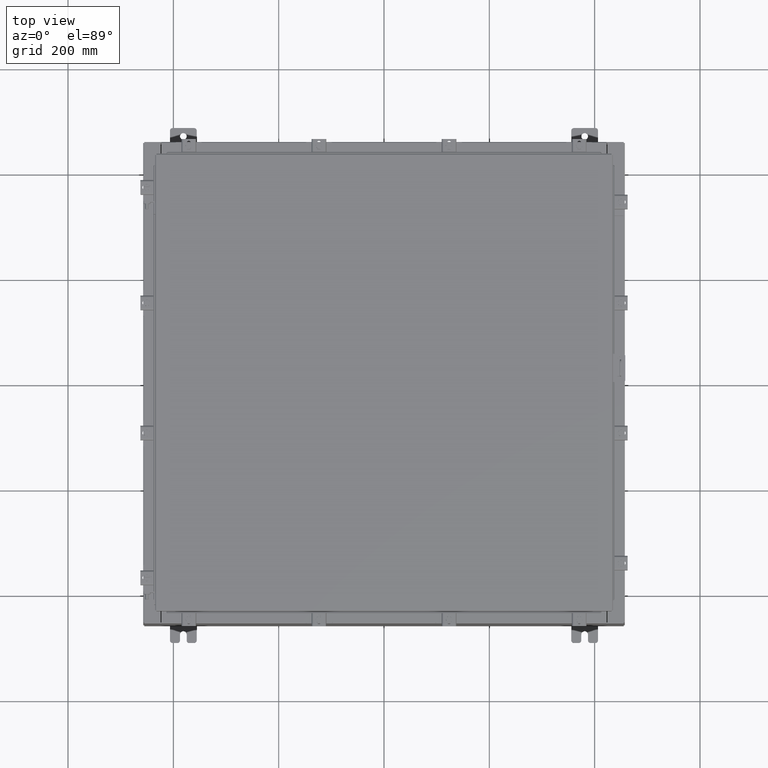
[diagram: clean part render]
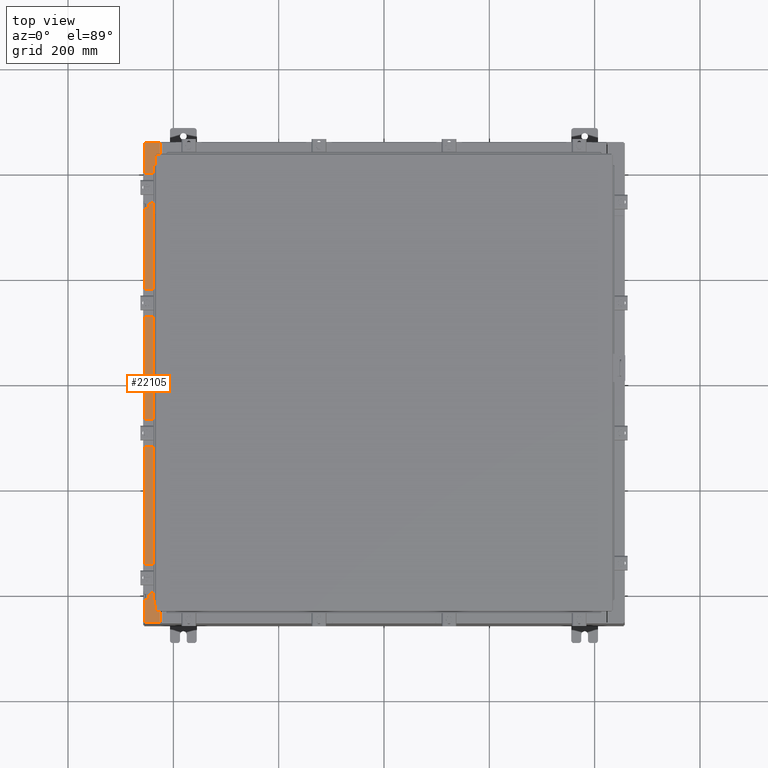
[diagram: same view with one face highlighted and labeled with its STEP entity id]
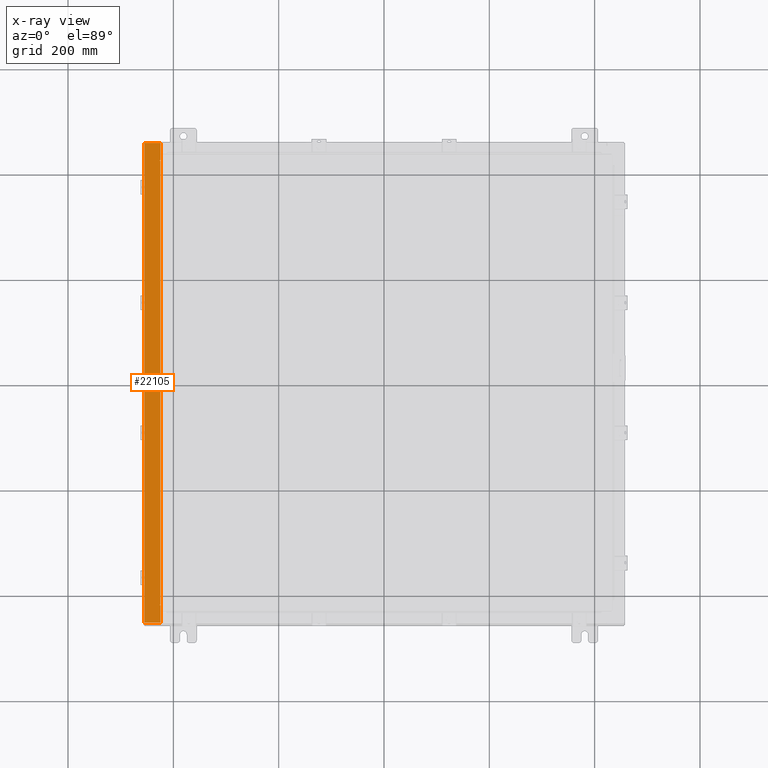
[diagram: x-ray of the same camera — body ghosted, the highlighted face saturated]
A machine part, top view. The second image highlights one B-rep face of the part: STEP entity #22105.
The next image is the same camera in x-ray: the body ghosted, the highlighted face saturated — about 0% of this face is hidden behind the body in this view.
In plain terms, the highlighted planar face has unit normal (0, 0, -1).
Its self-contained STEP definition (entity closure, byte-faithful):
#81 = CARTESIAN_POINT ( 'NONE',  ( -16.69970000000004300, 0.0000000000000000000, 11.92530000000000900 ) ) ;
#299 = VECTOR ( 'NONE', #3041, 39.37007874015748100 ) ;
#419 = ORIENTED_EDGE ( 'NONE', *, *, #2766, .F. ) ;
#669 = CARTESIAN_POINT ( 'NONE',  ( -16.75005000000004100, 16.59375000000000000, 11.92530000000000900 ) ) ;
#821 = CARTESIAN_POINT ( 'NONE',  ( -8.532114493236880700E-014, 0.0000000000000000000, 11.92530000000013000 ) ) ;
#1133 = CARTESIAN_POINT ( 'NONE',  ( -16.69970000000004300, 17.92530000000000000, 11.92530000000000900 ) ) ;
#1616 = DIRECTION ( 'NONE',  ( 0.0000000000000000000, 1.000000000000000000, 0.0000000000000000000 ) ) ;
#1712 = CARTESIAN_POINT ( 'NONE',  ( -16.75005000000004100, -16.63110000000000000, 11.92530000000000900 ) ) ;
#2168 = VECTOR ( 'NONE', #23709, 39.37007874015748100 ) ;
#2356 = EDGE_CURVE ( 'NONE', #16671, #18657, #14402, .T. ) ;
#2521 = CIRCLE ( 'NONE', #21454, 0.01867499999999949400 ) ;
#2683 = VERTEX_POINT ( 'NONE', #669 ) ;
#2707 = ORIENTED_EDGE ( 'NONE', *, *, #5775, .T. ) ;
#2766 = EDGE_CURVE ( 'NONE', #6920, #5363, #5882, .T. ) ;
#2942 = DIRECTION ( 'NONE',  ( 7.132762385546384700E-015, 0.0000000000000000000, -1.000000000000000000 ) ) ;
#3041 = DIRECTION ( 'NONE',  ( -0.0000000000000000000, 1.000000000000000000, -0.0000000000000000000 ) ) ;
#3084 = ORIENTED_EDGE ( 'NONE', *, *, #21712, .F. ) ;
#3278 = VECTOR ( 'NONE', #1616, 39.37007874015748100 ) ;
#3533 = EDGE_CURVE ( 'NONE', #17413, #14650, #21243, .T. ) ;
#3877 = VERTEX_POINT ( 'NONE', #7406 ) ;
#3948 = ORIENTED_EDGE ( 'NONE', *, *, #5366, .T. ) ;
#4086 = LINE ( 'NONE', #22538, #9010 ) ;
#4978 = EDGE_CURVE ( 'NONE', #13679, #2683, #12632, .T. ) ;
#5363 = VERTEX_POINT ( 'NONE', #16224 ) ;
#5366 = EDGE_CURVE ( 'NONE', #18657, #5363, #4086, .T. ) ;
#5432 = CARTESIAN_POINT ( 'NONE',  ( -16.71270000000004400, -16.59375000000000000, 11.92530000000001200 ) ) ;
#5775 = EDGE_CURVE ( 'NONE', #6920, #17413, #17572, .T. ) ;
#5809 = VECTOR ( 'NONE', #21328, 39.37007874015748100 ) ;
#5882 = LINE ( 'NONE', #13477, #299 ) ;
#5966 = VECTOR ( 'NONE', #16456, 39.37007874015748100 ) ;
#6533 = DIRECTION ( 'NONE',  ( -7.132762385546384700E-015, -0.0000000000000000000, 1.000000000000000000 ) ) ;
#6826 = ORIENTED_EDGE ( 'NONE', *, *, #18693, .F. ) ;
#6920 = VERTEX_POINT ( 'NONE', #18644 ) ;
#7133 = LINE ( 'NONE', #17217, #5809 ) ;
#7406 = CARTESIAN_POINT ( 'NONE',  ( -16.71270000000004400, 16.59375000000000000, 11.92530000000001200 ) ) ;
#7945 = EDGE_CURVE ( 'NONE', #18167, #14650, #13845, .T. ) ;
#8860 = EDGE_CURVE ( 'NONE', #16671, #13679, #26963, .T. ) ;
#9010 = VECTOR ( 'NONE', #12089, 39.37007874015748100 ) ;
#9275 = EDGE_LOOP ( 'NONE', ( #14379, #13049, #3948, #419, #2707, #13629, #27130, #19870, #6826, #3084, #20287, #17878 ) ) ;
#9323 = CARTESIAN_POINT ( 'NONE',  ( -16.75005000000004100, -16.63110000000000000, 11.92530000000001200 ) ) ;
#9411 = DIRECTION ( 'NONE',  ( 1.000000000000000000, -4.340572780400098900E-014, -4.340572780400098900E-014 ) ) ;
#11161 = CARTESIAN_POINT ( 'NONE',  ( -8.532114493236880700E-014, -17.92530000000000000, 11.92530000000013000 ) ) ;
#11217 = CARTESIAN_POINT ( 'NONE',  ( -16.75005000000004100, -16.61242500000000200, 11.92530000000001200 ) ) ;
#11473 = VERTEX_POINT ( 'NONE', #23925 ) ;
#11790 = EDGE_CURVE ( 'NONE', #2683, #3877, #25168, .T. ) ;
#12089 = DIRECTION ( 'NONE',  ( -1.000000000000000000, 0.0000000000000000000, -7.132762385546384700E-015 ) ) ;
#12240 = DIRECTION ( 'NONE',  ( 1.000000000000000000, 0.0000000000000000000, 0.0000000000000000000 ) ) ;
#12632 = CIRCLE ( 'NONE', #18762, 0.01867499999999949400 ) ;
#13049 = ORIENTED_EDGE ( 'NONE', *, *, #2356, .T. ) ;
#13335 = DIRECTION ( 'NONE',  ( 1.000000000000000000, 0.0000000000000000000, 0.0000000000000000000 ) ) ;
#13361 = VECTOR ( 'NONE', #12240, 39.37007874015748100 ) ;
#13477 = CARTESIAN_POINT ( 'NONE',  ( -17.91230000000004100, 17.92530000000000000, 11.92530000000000400 ) ) ;
#13629 = ORIENTED_EDGE ( 'NONE', *, *, #3533, .T. ) ;
#13679 = VERTEX_POINT ( 'NONE', #21292 ) ;
#13845 = LINE ( 'NONE', #9323, #24356 ) ;
#14367 = CARTESIAN_POINT ( 'NONE',  ( -16.75005000000004100, 16.59375000000000000, 11.92530000000001200 ) ) ;
#14379 = ORIENTED_EDGE ( 'NONE', *, *, #8860, .F. ) ;
#14402 = LINE ( 'NONE', #22575, #3278 ) ;
#14650 = VERTEX_POINT ( 'NONE', #22422 ) ;
#14726 = DIRECTION ( 'NONE',  ( 0.0000000000000000000, 1.000000000000000000, 0.0000000000000000000 ) ) ;
#15469 = PLANE ( 'NONE',  #16876 ) ;
#16224 = CARTESIAN_POINT ( 'NONE',  ( -17.91230000000004100, 17.92530000000000000, 11.92530000000000400 ) ) ;
#16456 = DIRECTION ( 'NONE',  ( -1.000000000000000000, -4.340572780400098900E-014, 4.340572780400098900E-014 ) ) ;
#16671 = VERTEX_POINT ( 'NONE', #19645 ) ;
#16876 = AXIS2_PLACEMENT_3D ( 'NONE', #821, #2942, #17592 ) ;
#17217 = CARTESIAN_POINT ( 'NONE',  ( -16.71270000000004400, 16.59375000000000000, 11.92530000000001200 ) ) ;
#17413 = VERTEX_POINT ( 'NONE', #17959 ) ;
#17572 = LINE ( 'NONE', #11161, #2168 ) ;
#17592 = DIRECTION ( 'NONE',  ( -1.000000000000000000, 0.0000000000000000000, -7.132762385546384700E-015 ) ) ;
#17878 = ORIENTED_EDGE ( 'NONE', *, *, #4978, .F. ) ;
#17959 = CARTESIAN_POINT ( 'NONE',  ( -16.69970000000004300, -17.92530000000000000, 11.92530000000000900 ) ) ;
#17988 = DIRECTION ( 'NONE',  ( -1.000000000000000000, 0.0000000000000000000, 0.0000000000000000000 ) ) ;
#18167 = VERTEX_POINT ( 'NONE', #1712 ) ;
#18617 = VECTOR ( 'NONE', #14726, 39.37007874015748100 ) ;
#18644 = CARTESIAN_POINT ( 'NONE',  ( -17.91230000000004100, -17.92530000000000000, 11.92530000000000400 ) ) ;
#18657 = VERTEX_POINT ( 'NONE', #1133 ) ;
#18693 = EDGE_CURVE ( 'NONE', #11473, #22237, #22975, .T. ) ;
#18762 = AXIS2_PLACEMENT_3D ( 'NONE', #19067, #6533, #21167 ) ;
#19067 = CARTESIAN_POINT ( 'NONE',  ( -16.75005000000004100, 16.61242500000000200, 11.92530000000001200 ) ) ;
#19645 = CARTESIAN_POINT ( 'NONE',  ( -16.69970000000004300, 16.63110000000000400, 11.92530000000000900 ) ) ;
#19870 = ORIENTED_EDGE ( 'NONE', *, *, #22699, .F. ) ;
#20048 = CARTESIAN_POINT ( 'NONE',  ( -16.75005000000004100, -16.59375000000000000, 11.92530000000000900 ) ) ;
#20287 = ORIENTED_EDGE ( 'NONE', *, *, #11790, .F. ) ;
#21167 = DIRECTION ( 'NONE',  ( 1.000000000000000000, 0.0000000000000000000, 0.0000000000000000000 ) ) ;
#21243 = LINE ( 'NONE', #81, #18617 ) ;
#21292 = CARTESIAN_POINT ( 'NONE',  ( -16.75005000000004100, 16.63110000000000000, 11.92530000000000900 ) ) ;
#21328 = DIRECTION ( 'NONE',  ( -0.0000000000000000000, -1.000000000000000000, -0.0000000000000000000 ) ) ;
#21454 = AXIS2_PLACEMENT_3D ( 'NONE', #11217, #25913, #13335 ) ;
#21683 = VECTOR ( 'NONE', #17988, 39.37007874015748100 ) ;
#21712 = EDGE_CURVE ( 'NONE', #3877, #11473, #7133, .T. ) ;
#22105 = ADVANCED_FACE ( 'NONE', ( #26155 ), #15469, .F. ) ;
#22237 = VERTEX_POINT ( 'NONE', #20048 ) ;
#22422 = CARTESIAN_POINT ( 'NONE',  ( -16.69970000000004300, -16.63110000000000400, 11.92530000000000900 ) ) ;
#22538 = CARTESIAN_POINT ( 'NONE',  ( -8.532114493236880700E-014, 17.92530000000000000, 11.92530000000013000 ) ) ;
#22575 = CARTESIAN_POINT ( 'NONE',  ( -16.69970000000004300, 0.0000000000000000000, 11.92530000000000900 ) ) ;
#22699 = EDGE_CURVE ( 'NONE', #22237, #18167, #2521, .T. ) ;
#22975 = LINE ( 'NONE', #5432, #21683 ) ;
#23709 = DIRECTION ( 'NONE',  ( 1.000000000000000000, -0.0000000000000000000, 7.132762385546384700E-015 ) ) ;
#23925 = CARTESIAN_POINT ( 'NONE',  ( -16.71270000000004400, -16.59375000000000000, 11.92530000000001200 ) ) ;
#24356 = VECTOR ( 'NONE', #9411, 39.37007874015748100 ) ;
#25168 = LINE ( 'NONE', #14367, #13361 ) ;
#25913 = DIRECTION ( 'NONE',  ( -7.132762385546384700E-015, -0.0000000000000000000, 1.000000000000000000 ) ) ;
#26155 = FACE_OUTER_BOUND ( 'NONE', #9275, .T. ) ;
#26932 = CARTESIAN_POINT ( 'NONE',  ( -16.69970000000004300, 16.63110000000000400, 11.92530000000000900 ) ) ;
#26963 = LINE ( 'NONE', #26932, #5966 ) ;
#27130 = ORIENTED_EDGE ( 'NONE', *, *, #7945, .F. ) ;